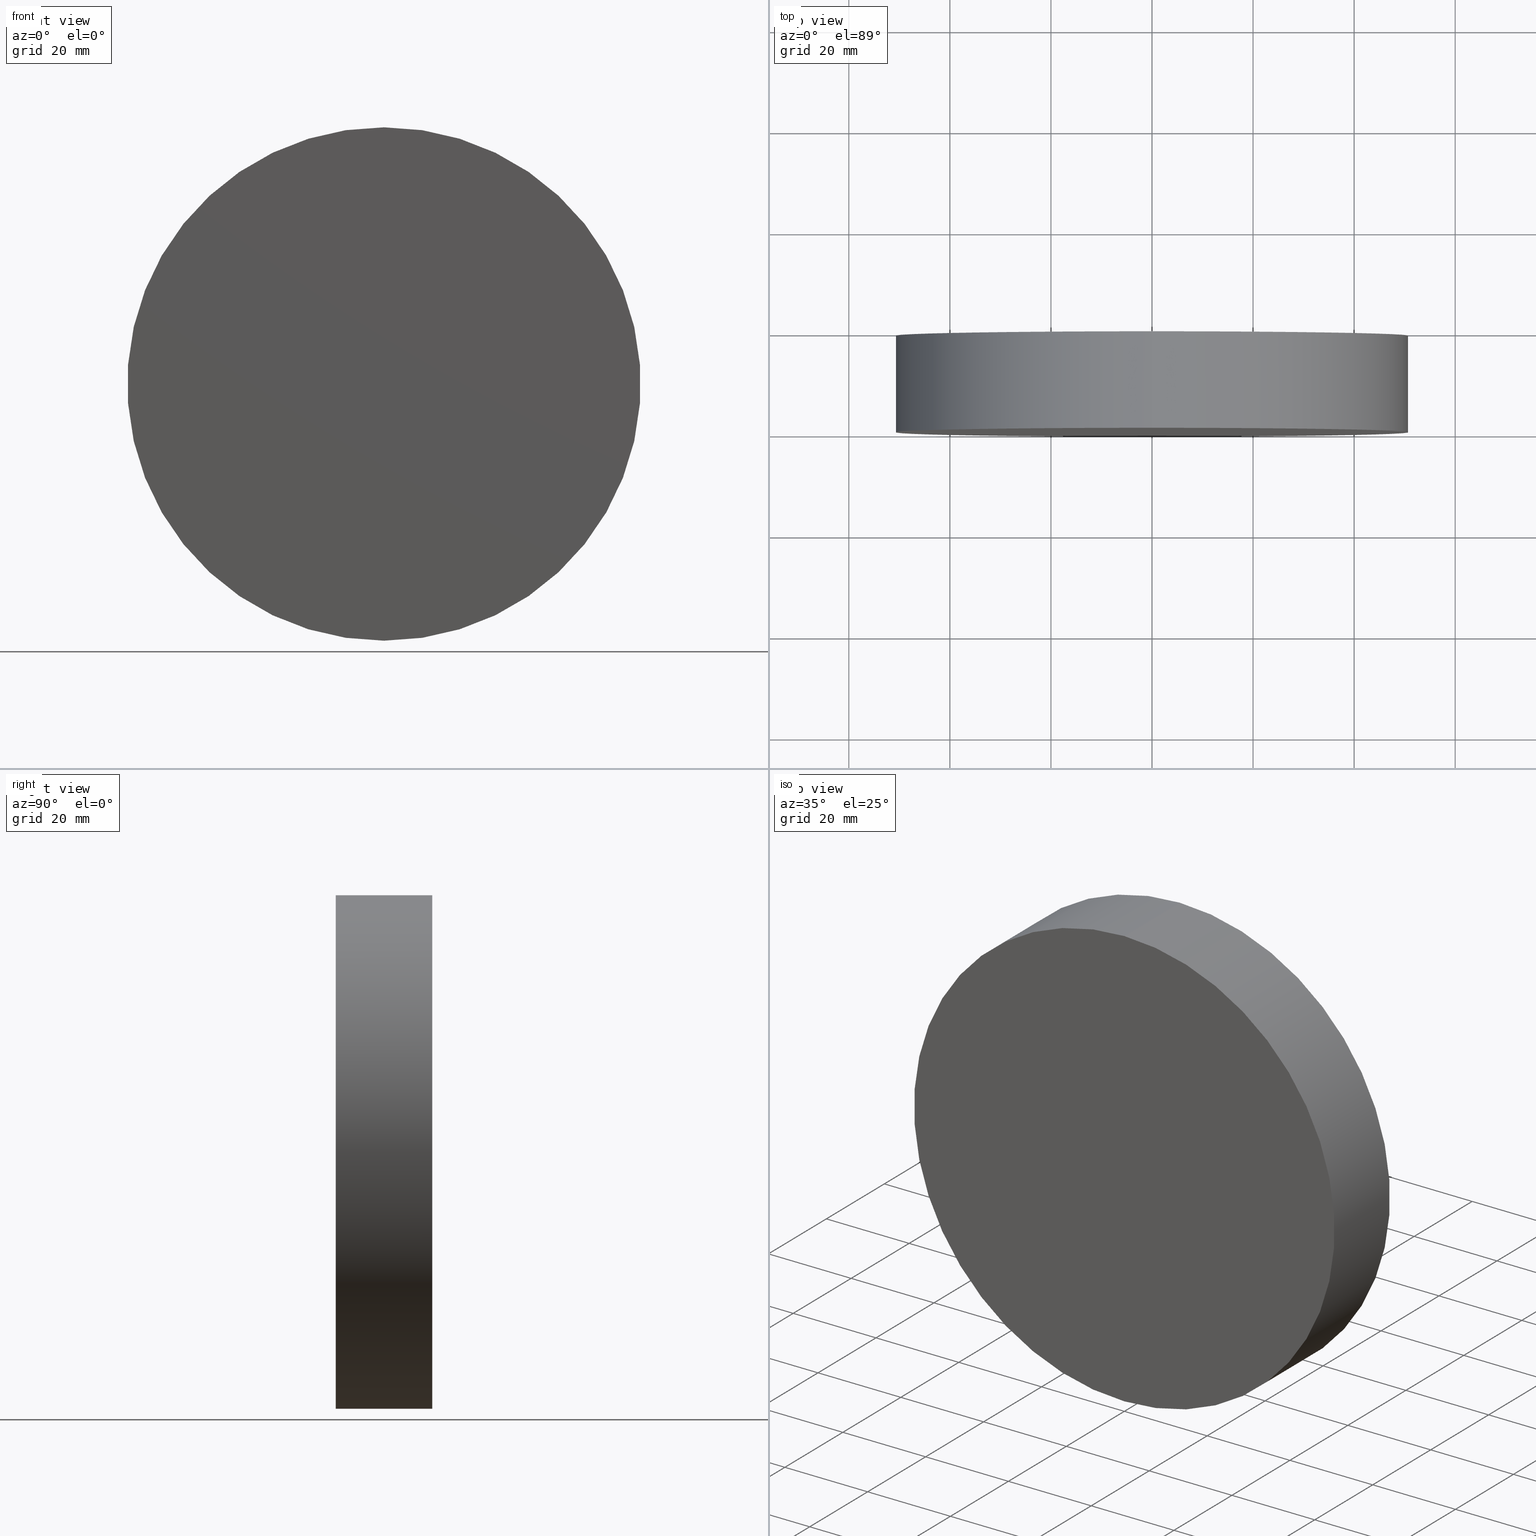
[diagram: canonical four-view strip — front | top / right | iso, engineering-drawing reading convention]
A machine part, canonical four-view strip (front | top / right | iso — engineering-drawing reading convention). The complete STEP part file that produces these views, byte-faithful:
ISO-10303-21;
HEADER;
FILE_DESCRIPTION (( 'STEP AP214' ),
    '1' );
FILE_NAME ('192503.STEP',
    '2019-07-19T05:13:14',
    ( 'user' ),
    ( '΢���й�' ),
    'SwSTEP 2.0',
    'SolidWorks 2016',
    '' );
FILE_SCHEMA (( 'AUTOMOTIVE_DESIGN' ));
ENDSEC;

DATA;
#1 = PRESENTATION_STYLE_ASSIGNMENT (( #75 ) ) ;
#2 = PRODUCT_RELATED_PRODUCT_CATEGORY ( 'part', '', ( #131 ) ) ;
#3 = PRODUCT_DEFINITION_CONTEXT ( 'detailed design', #132, 'design' ) ;
#4 = VERTEX_POINT ( 'NONE', #137 ) ;
#5 = DIRECTION ( 'NONE',  ( 0.0000000000000000000, 0.0000000000000000000, 1.000000000000000000 ) ) ;
#6 = AXIS2_PLACEMENT_3D ( 'NONE', #111, #30, #69 ) ;
#7 = AXIS2_PLACEMENT_3D ( 'NONE', #90, #96, #73 ) ;
#8 = ORIENTED_EDGE ( 'NONE', *, *, #22, .F. ) ;
#9 = DIRECTION ( 'NONE',  ( 0.0000000000000000000, 0.0000000000000000000, -1.000000000000000000 ) ) ;
#10 = CLOSED_SHELL ( 'NONE', ( #110, #19, #98, #58 ) ) ;
#11 = ORIENTED_EDGE ( 'NONE', *, *, #130, .T. ) ;
#12 = ORIENTED_EDGE ( 'NONE', *, *, #101, .T. ) ;
#13 = ADVANCED_BREP_SHAPE_REPRESENTATION ( '192503', ( #128, #119 ), #21 ) ;
#14 = DIRECTION ( 'NONE',  ( -0.0000000000000000000, -1.000000000000000000, -0.0000000000000000000 ) ) ;
#15 = VERTEX_POINT ( 'NONE', #51 ) ;
#16 = CARTESIAN_POINT ( 'NONE',  ( 0.0000000000000000000, 0.0000000000000000000, -50.79999999999999700 ) ) ;
#17 =( LENGTH_UNIT ( ) NAMED_UNIT ( * ) SI_UNIT ( .MILLI., .METRE. ) );
#18 = MECHANICAL_DESIGN_GEOMETRIC_PRESENTATION_REPRESENTATION (  '', ( #29 ), #48 ) ;
#19 = ADVANCED_FACE ( 'NONE', ( #55 ), #108, .T. ) ;
#20 = CARTESIAN_POINT ( 'NONE',  ( 0.0000000000000000000, 19.10000000000000100, 0.0000000000000000000 ) ) ;
#21 =( GEOMETRIC_REPRESENTATION_CONTEXT ( 3 ) GLOBAL_UNCERTAINTY_ASSIGNED_CONTEXT ( ( #61 ) ) GLOBAL_UNIT_ASSIGNED_CONTEXT ( ( #64, #49, #136 ) ) REPRESENTATION_CONTEXT ( 'NONE', 'WORKASPACE' ) );
#22 = EDGE_CURVE ( 'NONE', #4, #129, #79, .T. ) ;
#23 = ORIENTED_EDGE ( 'NONE', *, *, #130, .F. ) ;
#24 = COLOUR_RGB ( '',1.000000000000000000, 1.000000000000000000, 1.000000000000000000 ) ;
#25 = PRESENTATION_LAYER_ASSIGNMENT (  '', '', ( #29 ) ) ;
#26 = COLOUR_RGB ( '',1.000000000000000000, 1.000000000000000000, 1.000000000000000000 ) ;
#27 = EDGE_CURVE ( 'NONE', #40, #4, #53, .T. ) ;
#28 = VECTOR ( 'NONE', #109, 1000.000000000000000 ) ;
#29 = STYLED_ITEM ( 'NONE', ( #1 ), #128 ) ;
#30 = DIRECTION ( 'NONE',  ( -0.0000000000000000000, -1.000000000000000000, -0.0000000000000000000 ) ) ;
#31 = CARTESIAN_POINT ( 'NONE',  ( 0.0000000000000000000, 0.0000000000000000000, 0.0000000000000000000 ) ) ;
#32 = VECTOR ( 'NONE', #14, 1000.000000000000000 ) ;
#33 = ORIENTED_EDGE ( 'NONE', *, *, #34, .F. ) ;
#34 = EDGE_CURVE ( 'NONE', #129, #15, #77, .T. ) ;
#35 = AXIS2_PLACEMENT_3D ( 'NONE', #68, #122, #5 ) ;
#36 = EDGE_LOOP ( 'NONE', ( #95, #12, #103, #8 ) ) ;
#37 = DIRECTION ( 'NONE',  ( -0.0000000000000000000, -1.000000000000000000, -0.0000000000000000000 ) ) ;
#38 = UNCERTAINTY_MEASURE_WITH_UNIT (LENGTH_MEASURE( 1.000000000000000100E-005 ), #17, 'distance_accuracy_value', 'NONE');
#39 = SHAPE_DEFINITION_REPRESENTATION ( #43, #13 ) ;
#40 = VERTEX_POINT ( 'NONE', #116 ) ;
#41 = PLANE ( 'NONE',  #42 ) ;
#42 = AXIS2_PLACEMENT_3D ( 'NONE', #126, #125, #138 ) ;
#43 = PRODUCT_DEFINITION_SHAPE ( 'NONE', 'NONE',  #127 ) ;
#44 = SURFACE_STYLE_FILL_AREA ( #120 ) ;
#45 = APPLICATION_CONTEXT ( 'automotive_design' ) ;
#46 = DIRECTION ( 'NONE',  ( 0.0000000000000000000, 0.0000000000000000000, 1.000000000000000000 ) ) ;
#47 =( NAMED_UNIT ( * ) PLANE_ANGLE_UNIT ( ) SI_UNIT ( $, .RADIAN. ) );
#48 =( GEOMETRIC_REPRESENTATION_CONTEXT ( 3 ) GLOBAL_UNCERTAINTY_ASSIGNED_CONTEXT ( ( #38 ) ) GLOBAL_UNIT_ASSIGNED_CONTEXT ( ( #17, #47, #107 ) ) REPRESENTATION_CONTEXT ( 'NONE', 'WORKASPACE' ) );
#49 =( NAMED_UNIT ( * ) PLANE_ANGLE_UNIT ( ) SI_UNIT ( $, .RADIAN. ) );
#50 =( NAMED_UNIT ( * ) PLANE_ANGLE_UNIT ( ) SI_UNIT ( $, .RADIAN. ) );
#51 = CARTESIAN_POINT ( 'NONE',  ( 6.221205739668553700E-015, 0.0000000000000000000, 50.79999999999999700 ) ) ;
#52 = LINE ( 'NONE', #88, #28 ) ;
#53 = CIRCLE ( 'NONE', #117, 50.79999999999999700 ) ;
#54 = CARTESIAN_POINT ( 'NONE',  ( 0.0000000000000000000, 19.10000000000000100, -50.79999999999999700 ) ) ;
#55 = FACE_OUTER_BOUND ( 'NONE', #63, .T. ) ;
#56 = DIRECTION ( 'NONE',  ( 0.0000000000000000000, 0.0000000000000000000, 1.000000000000000000 ) ) ;
#57 = SURFACE_SIDE_STYLE ('',( #134 ) ) ;
#58 = ADVANCED_FACE ( 'NONE', ( #102 ), #99, .F. ) ;
#59 = SURFACE_STYLE_USAGE ( .BOTH. , #105 ) ;
#60 = ORIENTED_EDGE ( 'NONE', *, *, #22, .T. ) ;
#61 = UNCERTAINTY_MEASURE_WITH_UNIT (LENGTH_MEASURE( 1.000000000000000100E-005 ), #64, 'distance_accuracy_value', 'NONE');
#62 = DIRECTION ( 'NONE',  ( 1.000000000000000000, 0.0000000000000000000, 0.0000000000000000000 ) ) ;
#63 = EDGE_LOOP ( 'NONE', ( #118, #23, #60, #92 ) ) ;
#64 =( LENGTH_UNIT ( ) NAMED_UNIT ( * ) SI_UNIT ( .MILLI., .METRE. ) );
#65 = FILL_AREA_STYLE ('',( #76 ) ) ;
#66 = APPLICATION_PROTOCOL_DEFINITION ( 'draft international standard', 'automotive_design', 1998, #45 ) ;
#67 = EDGE_LOOP ( 'NONE', ( #33, #89 ) ) ;
#68 = CARTESIAN_POINT ( 'NONE',  ( 0.0000000000000000000, 0.0000000000000000000, 0.0000000000000000000 ) ) ;
#69 = DIRECTION ( 'NONE',  ( 0.0000000000000000000, 0.0000000000000000000, -1.000000000000000000 ) ) ;
#70 = STYLED_ITEM ( 'NONE', ( #104 ), #13 ) ;
#71 = DIRECTION ( 'NONE',  ( 0.0000000000000000000, 0.0000000000000000000, 1.000000000000000000 ) ) ;
#72 = FILL_AREA_STYLE_COLOUR ( '', #26 ) ;
#73 = DIRECTION ( 'NONE',  ( 0.0000000000000000000, 0.0000000000000000000, 1.000000000000000000 ) ) ;
#74 = FACE_OUTER_BOUND ( 'NONE', #82, .T. ) ;
#75 = SURFACE_STYLE_USAGE ( .BOTH. , #57 ) ;
#76 = FILL_AREA_STYLE_COLOUR ( '', #24 ) ;
#77 = CIRCLE ( 'NONE', #7, 50.79999999999999700 ) ;
#78 = PRESENTATION_LAYER_ASSIGNMENT (  '', '', ( #70 ) ) ;
#79 = LINE ( 'NONE', #54, #32 ) ;
#80 = UNCERTAINTY_MEASURE_WITH_UNIT (LENGTH_MEASURE( 1.000000000000000100E-005 ), #123, 'distance_accuracy_value', 'NONE');
#81 =( NAMED_UNIT ( * ) SI_UNIT ( $, .STERADIAN. ) SOLID_ANGLE_UNIT ( ) );
#82 = EDGE_LOOP ( 'NONE', ( #11, #114 ) ) ;
#83 = DIRECTION ( 'NONE',  ( 0.0000000000000000000, -0.0000000000000000000, 1.000000000000000000 ) ) ;
#84 = CYLINDRICAL_SURFACE ( 'NONE', #6, 50.79999999999999700 ) ;
#85 = PRODUCT_CONTEXT ( 'NONE', #45, 'mechanical' ) ;
#86 = MECHANICAL_DESIGN_GEOMETRIC_PRESENTATION_REPRESENTATION (  '', ( #70 ), #94 ) ;
#87 = CARTESIAN_POINT ( 'NONE',  ( 0.0000000000000000000, 19.10000000000000100, 0.0000000000000000000 ) ) ;
#88 = CARTESIAN_POINT ( 'NONE',  ( 6.221205739668553700E-015, 19.10000000000000100, 50.79999999999999700 ) ) ;
#89 = ORIENTED_EDGE ( 'NONE', *, *, #113, .F. ) ;
#90 = CARTESIAN_POINT ( 'NONE',  ( 0.0000000000000000000, 0.0000000000000000000, 0.0000000000000000000 ) ) ;
#91 = AXIS2_PLACEMENT_3D ( 'NONE', #20, #37, #9 ) ;
#92 = ORIENTED_EDGE ( 'NONE', *, *, #34, .T. ) ;
#93 = CIRCLE ( 'NONE', #115, 50.79999999999999700 ) ;
#94 =( GEOMETRIC_REPRESENTATION_CONTEXT ( 3 ) GLOBAL_UNCERTAINTY_ASSIGNED_CONTEXT ( ( #80 ) ) GLOBAL_UNIT_ASSIGNED_CONTEXT ( ( #123, #50, #81 ) ) REPRESENTATION_CONTEXT ( 'NONE', 'WORKASPACE' ) );
#95 = ORIENTED_EDGE ( 'NONE', *, *, #27, .F. ) ;
#96 = DIRECTION ( 'NONE',  ( 0.0000000000000000000, 1.000000000000000000, 0.0000000000000000000 ) ) ;
#97 = DIRECTION ( 'NONE',  ( 0.0000000000000000000, 1.000000000000000000, 0.0000000000000000000 ) ) ;
#98 = ADVANCED_FACE ( 'NONE', ( #74 ), #41, .T. ) ;
#99 = PLANE ( 'NONE',  #140 ) ;
#100 = CIRCLE ( 'NONE', #35, 50.79999999999999700 ) ;
#101 = EDGE_CURVE ( 'NONE', #40, #15, #52, .T. ) ;
#102 = FACE_OUTER_BOUND ( 'NONE', #67, .T. ) ;
#103 = ORIENTED_EDGE ( 'NONE', *, *, #113, .T. ) ;
#104 = PRESENTATION_STYLE_ASSIGNMENT (( #59 ) ) ;
#105 = SURFACE_SIDE_STYLE ('',( #44 ) ) ;
#106 = DIRECTION ( 'NONE',  ( 0.0000000000000000000, 1.000000000000000000, 0.0000000000000000000 ) ) ;
#107 =( NAMED_UNIT ( * ) SI_UNIT ( $, .STERADIAN. ) SOLID_ANGLE_UNIT ( ) );
#108 = CYLINDRICAL_SURFACE ( 'NONE', #91, 50.79999999999999700 ) ;
#109 = DIRECTION ( 'NONE',  ( -0.0000000000000000000, -1.000000000000000000, -0.0000000000000000000 ) ) ;
#110 = ADVANCED_FACE ( 'NONE', ( #139 ), #84, .T. ) ;
#111 = CARTESIAN_POINT ( 'NONE',  ( 0.0000000000000000000, 19.10000000000000100, 0.0000000000000000000 ) ) ;
#112 = DIRECTION ( 'NONE',  ( 0.0000000000000000000, 1.000000000000000000, 0.0000000000000000000 ) ) ;
#113 = EDGE_CURVE ( 'NONE', #15, #129, #100, .T. ) ;
#114 = ORIENTED_EDGE ( 'NONE', *, *, #27, .T. ) ;
#115 = AXIS2_PLACEMENT_3D ( 'NONE', #121, #106, #46 ) ;
#116 = CARTESIAN_POINT ( 'NONE',  ( 6.221205739668553700E-015, 19.10000000000000100, 50.79999999999999700 ) ) ;
#117 = AXIS2_PLACEMENT_3D ( 'NONE', #87, #97, #56 ) ;
#118 = ORIENTED_EDGE ( 'NONE', *, *, #101, .F. ) ;
#119 = AXIS2_PLACEMENT_3D ( 'NONE', #124, #71, #62 ) ;
#120 = FILL_AREA_STYLE ('',( #72 ) ) ;
#121 = CARTESIAN_POINT ( 'NONE',  ( 0.0000000000000000000, 19.10000000000000100, 0.0000000000000000000 ) ) ;
#122 = DIRECTION ( 'NONE',  ( 0.0000000000000000000, 1.000000000000000000, 0.0000000000000000000 ) ) ;
#123 =( LENGTH_UNIT ( ) NAMED_UNIT ( * ) SI_UNIT ( .MILLI., .METRE. ) );
#124 = CARTESIAN_POINT ( 'NONE',  ( 0.0000000000000000000, 0.0000000000000000000, 0.0000000000000000000 ) ) ;
#125 = DIRECTION ( 'NONE',  ( 0.0000000000000000000, 1.000000000000000000, 0.0000000000000000000 ) ) ;
#126 = CARTESIAN_POINT ( 'NONE',  ( 0.0000000000000000000, 19.10000000000000100, 0.0000000000000000000 ) ) ;
#127 = PRODUCT_DEFINITION ( 'δ֪', '', #135, #3 ) ;
#128 = MANIFOLD_SOLID_BREP ( '͹̨-����1', #10 ) ;
#129 = VERTEX_POINT ( 'NONE', #16 ) ;
#130 = EDGE_CURVE ( 'NONE', #4, #40, #93, .T. ) ;
#131 = PRODUCT ( '192503', '192503', '', ( #85 ) ) ;
#132 = APPLICATION_CONTEXT ( 'automotive_design' ) ;
#133 = APPLICATION_PROTOCOL_DEFINITION ( 'draft international standard', 'automotive_design', 1998, #132 ) ;
#134 = SURFACE_STYLE_FILL_AREA ( #65 ) ;
#135 = PRODUCT_DEFINITION_FORMATION_WITH_SPECIFIED_SOURCE ( '�κ�', '', #131, .NOT_KNOWN. ) ;
#136 =( NAMED_UNIT ( * ) SI_UNIT ( $, .STERADIAN. ) SOLID_ANGLE_UNIT ( ) );
#137 = CARTESIAN_POINT ( 'NONE',  ( 0.0000000000000000000, 19.10000000000000100, -50.79999999999999700 ) ) ;
#138 = DIRECTION ( 'NONE',  ( 0.0000000000000000000, -0.0000000000000000000, 1.000000000000000000 ) ) ;
#139 = FACE_OUTER_BOUND ( 'NONE', #36, .T. ) ;
#140 = AXIS2_PLACEMENT_3D ( 'NONE', #31, #112, #83 ) ;
ENDSEC;
END-ISO-10303-21;
